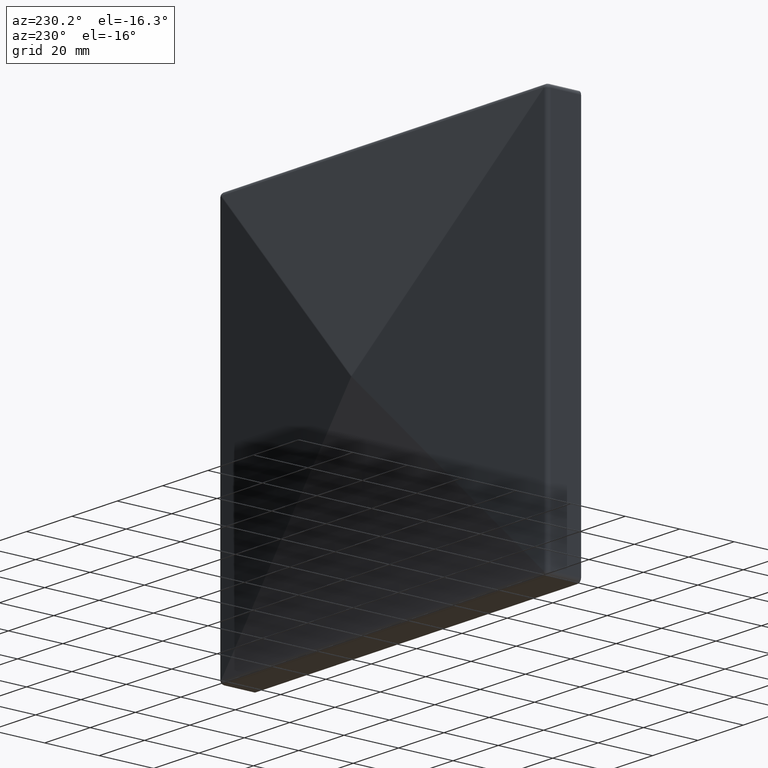
[diagram: clean part render]
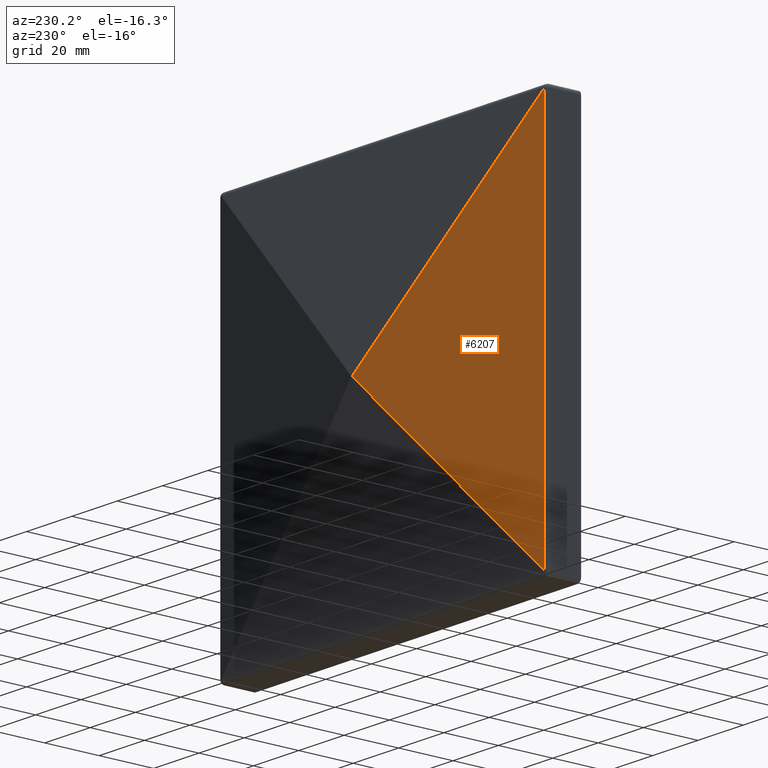
[diagram: same view with one face highlighted and labeled with its STEP entity id]
A machine part, auxiliary view. The second image highlights one B-rep face of the part: STEP entity #6207.
In plain terms, the highlighted planar face has unit normal (-0.1599, 0.9871, 0).
Its self-contained STEP definition (entity closure, byte-faithful):
#1473 = VECTOR ( 'NONE', #8541, 1000.000000000000000 ) ;
#1697 = VERTEX_POINT ( 'NONE', #9267 ) ;
#1807 = EDGE_CURVE ( 'NONE', #10211, #5635, #5114, .T. ) ;
#1911 = DIRECTION ( 'NONE',  ( -0.1598880872806348900, 0.9871351475587019100, 0.0000000000000000000 ) ) ;
#2045 = ORIENTED_EDGE ( 'NONE', *, *, #1807, .T. ) ;
#2437 = ORIENTED_EDGE ( 'NONE', *, *, #4086, .T. ) ;
#2988 = CARTESIAN_POINT ( 'NONE',  ( -71.23983213092095900, 12.48070272133805000, 71.00000000000002800 ) ) ;
#3266 = VECTOR ( 'NONE', #5036, 1000.000000000000100 ) ;
#3508 = FACE_OUTER_BOUND ( 'NONE', #9258, .T. ) ;
#3631 = EDGE_CURVE ( 'NONE', #5635, #1697, #6835, .T. ) ;
#4086 = EDGE_CURVE ( 'NONE', #1697, #10211, #10166, .T. ) ;
#5036 = DIRECTION ( 'NONE',  ( 0.7025141999565298600, 0.1137875112605647700, -0.7025141999565300800 ) ) ;
#5097 = AXIS2_PLACEMENT_3D ( 'NONE', #9393, #1911, #7800 ) ;
#5114 = LINE ( 'NONE', #5701, #1473 ) ;
#5290 = PLANE ( 'NONE',  #5097 ) ;
#5500 = CARTESIAN_POINT ( 'NONE',  ( -71.23983213092095900, 12.48070272133805000, -71.00000000000000000 ) ) ;
#5545 = VECTOR ( 'NONE', #8234, 1000.000000000000100 ) ;
#5587 = ORIENTED_EDGE ( 'NONE', *, *, #3631, .T. ) ;
#5635 = VERTEX_POINT ( 'NONE', #2988 ) ;
#5701 = CARTESIAN_POINT ( 'NONE',  ( -71.23983213092095900, 12.48070272133805000, -72.49999999999998600 ) ) ;
#6207 = ADVANCED_FACE ( 'NONE', ( #3508 ), #5290, .T. ) ;
#6835 = LINE ( 'NONE', #7511, #3266 ) ;
#7511 = CARTESIAN_POINT ( 'NONE',  ( -0.3581955714058257500, 23.96153117816093200, 0.1183634404848671300 ) ) ;
#7800 = DIRECTION ( 'NONE',  ( -0.9871351475587019100, -0.1598880872806348900, 0.0000000000000000000 ) ) ;
#8234 = DIRECTION ( 'NONE',  ( -0.7025141999565299700, -0.1137875112605647900, -0.7025141999565298600 ) ) ;
#8370 = CARTESIAN_POINT ( 'NONE',  ( -37.81907191847263800, 17.89392444588953900, -37.57923978755170000 ) ) ;
#8541 = DIRECTION ( 'NONE',  ( -0.0000000000000000000, -0.0000000000000000000, 1.000000000000000000 ) ) ;
#9258 = EDGE_LOOP ( 'NONE', ( #5587, #2437, #2045 ) ) ;
#9267 = CARTESIAN_POINT ( 'NONE',  ( -0.2398321309209534800, 23.98070272133805900, 0.0000000000000000000 ) ) ;
#9393 = CARTESIAN_POINT ( 'NONE',  ( -3.791033020110535600, 23.40550821111720800, -72.49999999999998600 ) ) ;
#10166 = LINE ( 'NONE', #8370, #5545 ) ;
#10211 = VERTEX_POINT ( 'NONE', #5500 ) ;